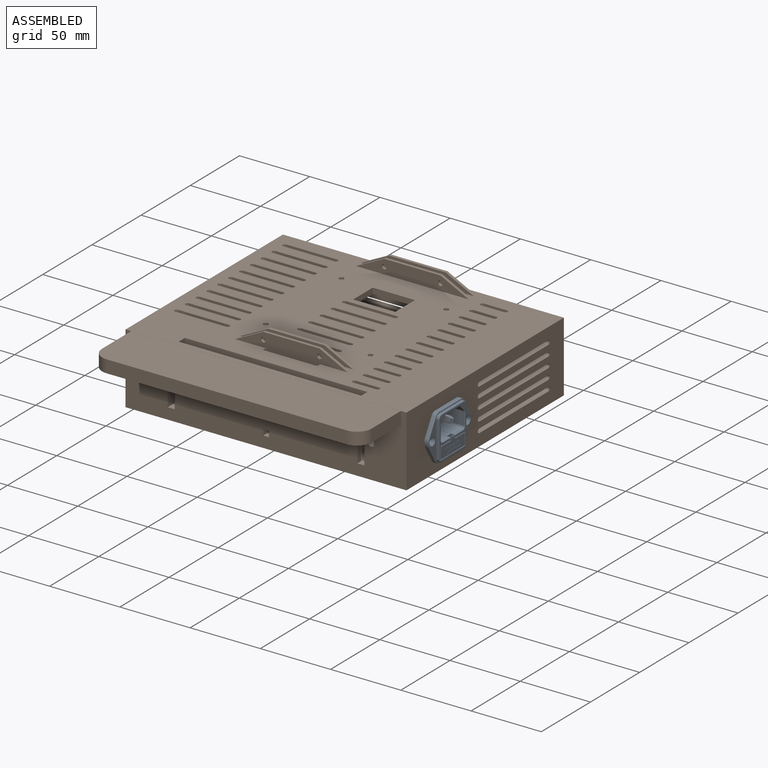
[diagram: assembled view]
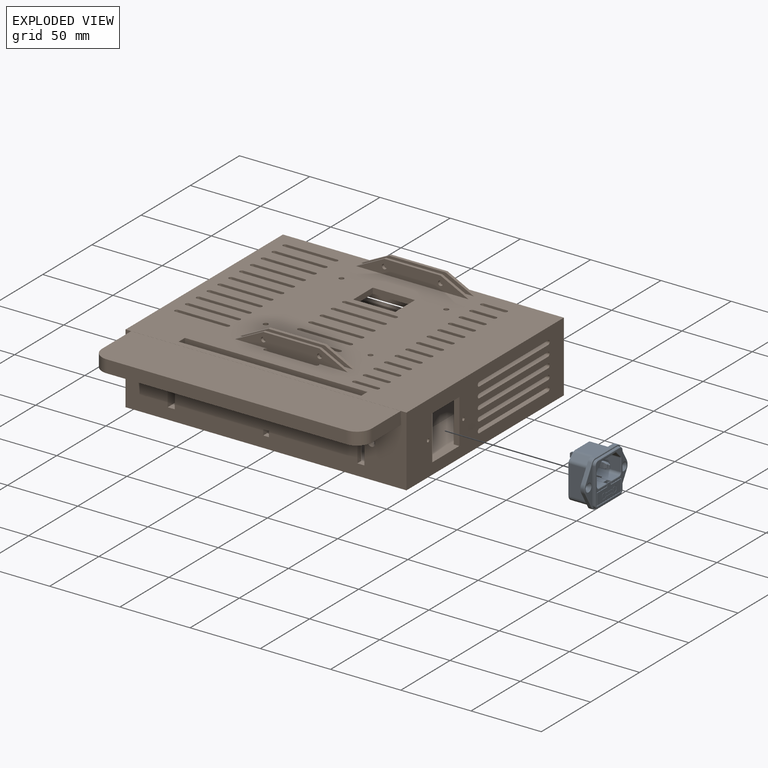
[diagram: exploded view]
GUIDED TOUR — FREECAD ASSEMBLY "BaseBox"

This assembly has 2 components, labeled P0..P1 below (a component is one placed body or linked part; the same part can appear more than once), held together by 0 modeled joints plus 1 derived contact edge. A joint is a constraint between two components; its type names the relative motion it leaves free:
  CONTACT — a derived adjacency edge — the two components touch in the source model (clearance under 2% of the assembly's diagonal); it is measured from the geometry, not a modeled constraint.
Axis/direction vectors are unit vectors and 'through' points are millimeter coordinates, both in the assembly's world frame.

MATES
  1. CONTACT "contact_0_1": P0 <-> P1, contact direction (-1.000, 0.000, 0.000) through (200.00, -58.18, 18.31) mm (derived from contact, not a modeled constraint)

ASSEMBLY ORDER
  1. P1 — the base component [order verified]
  2. P0 [order verified]
Order-tag legend:
  [order verified] — this step's position reverses a verified removal order: the component was checked to insert without passing through the ones already placed.

Of the 2 components, 1 carries a construction recipe — the FreeCAD feature program (sketches with constraints, then the solid features that consume them) that regenerates the part from scratch, quoted from this document or from the linked companion document it references; the rest are supplied as boundary geometry only. The tour below walks the components in assembly order: each is shown spotlighted twice — in the assembled view, then in the exploded view, where a leader line traces a displaced component back to its assembled socket (components that stay in place when exploded have no leader line; saturated green if recipe-attached, orange if geometry-only; every other component desaturated gray) — followed by its recipe or geometry summary and the mates that hold it.
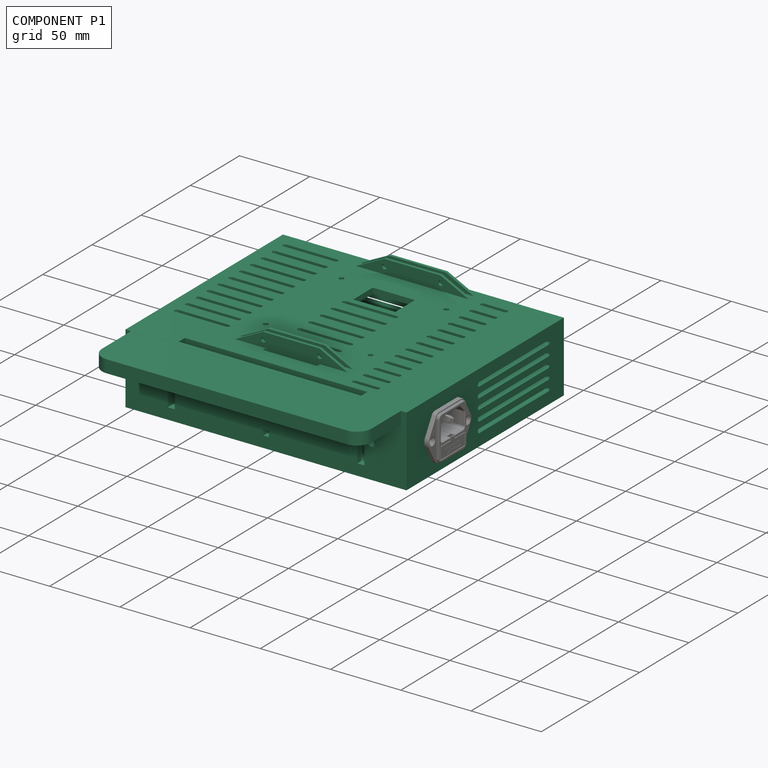
[diagram: component P1 — assembled]
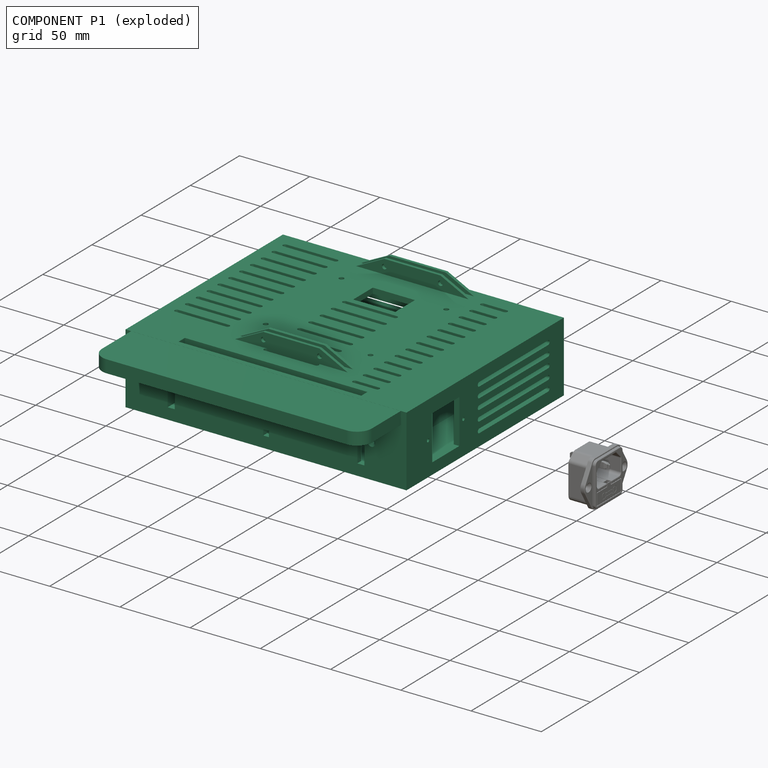
[diagram: component P1 — exploded]
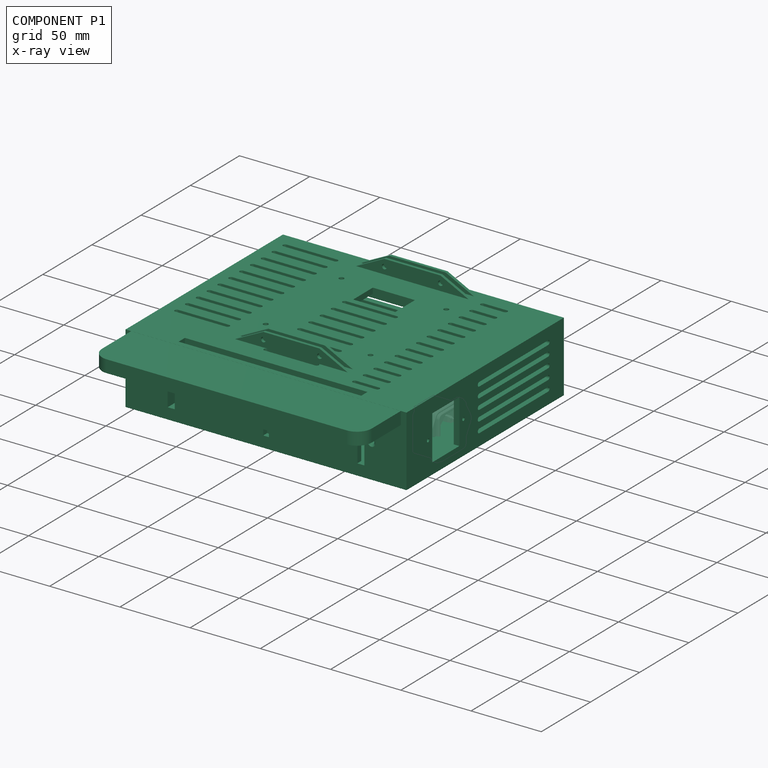
[diagram: component P1 — x-ray view]
COMPONENT P1 — recipe-attached ("BaseBox Part", modeled in this document).
Held by: resting contact with P0 (derived edge).
Construction recipe (the document's own serialized feature program — sketch geometry with constraints, then the solid features built on it; lengths are millimeters unless a unit is written):

FEATURE [Sketcher::SketchObject] Sketch  label="BaseBox Left Side Sketch"
  ArcFitTolerance = 1e-06
  AttachmentSupport = -> [YZ_Plane001]
  FullyConstrained = true
  MakeInternals = false
  MapMode = 5
  Placement = pos=(0,0,0) rot=(0.57735,0.57735,0.57735;2.0944rad)
  expr: Constraints[10] = <<Monitor Chassis Parameters>>.GSBasePowerBoxHeight - 2 * <<Monitor Chassis Parameters>>.GSBasePowerBoxSideThickness
  expr: Constraints[8] = <<Monitor Chassis Parameters>>.GSBasePowerBoxDepth - 2 * <<Monitor Chassis Parameters>>.GSBasePowerBoxSideThickness
  expr: Constraints[9] = 0.5 * (<<Monitor Chassis Parameters>>.GSBasePowerBoxDepth - 2 * <<Monitor Chassis Parameters>>.GSBasePowerBoxSideThickness)
  sketch-geometry (4):
    g0: LineSegment StartX=-76 StartY=42 StartZ=0 EndX=-76 EndY=0 EndZ=0
    g1: LineSegment StartX=-76 StartY=0 StartZ=0 EndX=76 EndY=0 EndZ=0
    g2: LineSegment StartX=76 StartY=0 StartZ=0 EndX=76 EndY=42 EndZ=0
    g3: LineSegment StartX=76 StartY=42 StartZ=0 EndX=-76 EndY=42 EndZ=0
  constraints (12):
    c: Coincident(g0,g1)
    c: Coincident(g1,g2)
    c: Coincident(g2,g3)
    c: Coincident(g3,g0)
    c: Vertical(g0)
    c: Vertical(g2)
    c: Horizontal(g1)
    c: Horizontal(g3)
    c: DistanceX(g0,g1) = 152
    c: DistanceX(g0,g-1) = 76
    c: DistanceY(g0,g0) = 42
    c: Horizontal(g-1,g0)
FEATURE [PartDesign::Pad] Pad  label="BaseBox Left Side Pad"
  Direction = (1,0,0)
  Length = 4
  Length2 = 10
  Placement = pos=(0,0,0) rot=(1,1,1;2.0944rad)
  Profile = -> Sketch
  ReferenceAxis = -> Sketch [N_Axis]
  Suppressed = false
  Type = 0
  expr: Length = <<Monitor Chassis Parameters>>.GSBasePowerBoxSideThickness
FEATURE [Sketcher::SketchObject] Sketch001  label="BaseBox Enclosure Sketch"
  ArcFitTolerance = 1e-06
  AttachmentSupport = -> [YZ_Plane001]
  FullyConstrained = true
  MakeInternals = false
  MapMode = 5
  Placement = pos=(0,0,0) rot=(0.57735,0.57735,0.57735;2.0944rad)
  expr: Constraints[16] = 0.5 * (<<Monitor Chassis Parameters>>.GSBasePowerBoxDepth - 2 * <<Monitor Chassis Parameters>>.GSBasePowerBoxSideThickness)
  expr: Constraints[17] = <<Monitor Chassis Parameters>>.GSBasePowerBoxDepth - 2 * <<Monitor Chassis Parameters>>.GSBasePowerBoxSideThickness
  expr: Constraints[18] = <<Monitor Chassis Parameters>>.GSBasePowerBoxHeight - 2 * <<Monitor Chassis Parameters>>.GSBasePowerBoxSideThickness
  expr: Constraints[19] = <<Monitor Chassis Parameters>>.GSBasePowerBoxSideThickness
  expr: Constraints[20] = <<Monitor Chassis Parameters>>.GSBasePowerBoxSideThickness
  expr: Constraints[21] = <<Monitor Chassis Parameters>>.GSBasePowerBoxSideThickness
  expr: Constraints[23] = <<Monitor Chassis Parameters>>.GSBasePowerBoxSideThickness
  sketch-geometry (8):
    g0: LineSegment StartX=-80 StartY=46 StartZ=0 EndX=-80 EndY=-4 EndZ=0
    g1: LineSegment StartX=-80 StartY=-4 StartZ=0 EndX=80 EndY=-4 EndZ=0
    g2: LineSegment StartX=80 StartY=-4 StartZ=0 EndX=80 EndY=46 EndZ=0
    g3: LineSegment StartX=80 StartY=46 StartZ=0 EndX=-80 EndY=46 EndZ=0
    g4: LineSegment StartX=-76 StartY=42 StartZ=0 EndX=-76 EndY=0 EndZ=0
    g5: LineSegment StartX=-76 StartY=0 StartZ=0 EndX=76 EndY=0 EndZ=0
    g6: LineSegment StartX=76 StartY=0 StartZ=0 EndX=76 EndY=42 EndZ=0
    g7: LineSegment StartX=76 StartY=42 StartZ=0 EndX=-76 EndY=42 EndZ=0
  constraints (24):
    c: Coincident(g0,g1)
    c: Coincident(g1,g2)
    c: Coincident(g2,g3)
    c: Coincident(g3,g0)
    c: Vertical(g0)
    c: Vertical(g2)
    c: Horizontal(g1)
    c: Horizontal(g3)
    c: Coincident(g4,g5)
    c: Coincident(g5,g6)
    c: Coincident(g6,g7)
    c: Coincident(g7,g4)
    c: Vertical(g4)
    c: Vertical(g6)
    c: Horizontal(g5)
    c: Horizontal(g7)
    c: DistanceX(g4,g-1) = 76
    c: DistanceX(g4,g5) = 152
    c: DistanceY(g4,g4) = 42
    c: DistanceX(g0,g4) = 4
    c: DistanceY(g4,g0) = 4
    c: DistanceX(g5,g1) = 4
    c: Horizontal(g4,g-1)
    c: DistanceY(g0,g4) = 4
FEATURE [PartDesign::Pad] Pad001  label="BaseBox Enclosure Pad"
  BaseFeature = -> Pad
  Direction = (1,0,0)
  Length = 180
  Length2 = 10
  Placement = pos=(0,0,0) rot=(1,1,1;2.0944rad)
  Profile = -> Sketch001
  ReferenceAxis = -> Sketch001 [N_Axis]
  Suppressed = false
  Type = 0
  expr: Length = <<Monitor Chassis Parameters>>.GSBasePowerBoxWidth
FEATURE [PartDesign::Plane] DatumPlane  label="BaseBox Side Datum Plane"
  AttachmentOffset = pos=(0,0,-80) rot=(0,0,1;0rad)
  AttachmentSupport = -> [XZ_Plane001]
  Length = 230.772
  MapMode = 5
  Placement = pos=(0,80,-1.78e-14) rot=(1,0,0;1.5708rad)
  ResizeMode = 0
  Width = 106.772
  expr: .AttachmentOffset.Base.z = -0.5 * <<Monitor Chassis Parameters>>.GSBasePowerBoxDepth
FEATURE [Sketcher::SketchObject] Sketch002  label="BaseBox Side Screw Holes Sketch"
  ArcFitTolerance = 1e-06
  AttachmentSupport = -> [DatumPlane]
  FullyConstrained = true
  MakeInternals = false
  MapMode = 5
  Placement = pos=(0,80,-1.78e-14) rot=(1,0,0;1.5708rad)
  expr: Constraints[0] = <<Monitor Chassis Parameters>>.GSBasePowerBoxSupplyMountingScrewSize
  expr: Constraints[1] = <<Monitor Chassis Parameters>>.GSBasePowerBoxSupplyMountingScrewSize
  expr: Constraints[2] = <<Monitor Chassis Parameters>>.GSBasePowerBoxSupplyMountingScrewSize
  expr: Constraints[4] = <<Monitor Chassis Parameters>>.GSBasePowerBoxSupplyMountingLeftScrewOffsetFromRight
  expr: Constraints[5] = <<Monitor Chassis Parameters>>.GSBasePowerBoxSupplyMountingScrewOffsetFromRight
  expr: Constraints[6] = <<Monitor Chassis Parameters>>.GSBasePowerBoxSupplyMountingRightScrewHeight1
  expr: Constraints[7] = <<Monitor Chassis Parameters>>.GSBasePowerBoxSupplyMountingRightScrewHeight2
  expr: Constraints[8] = <<Monitor Chassis Parameters>>.GSBasePowerBoxSupplyMountingLeftScrewHeight
  sketch-geometry (3):
    g0: Circle CenterX=141 CenterY=15 CenterZ=0 NormalX=0 NormalY=0 NormalZ=1 AngleXU=0 Radius=1.7
    g1: Circle CenterX=24 CenterY=24 CenterZ=0 NormalX=0 NormalY=0 NormalZ=1 AngleXU=0 Radius=1.7
    g2: Circle CenterX=24 CenterY=6 CenterZ=0 NormalX=0 NormalY=0 NormalZ=1 AngleXU=0 Radius=1.7
  constraints (9):
    c: Diameter(g0) = 3.4
    c: Diameter(g1) = 3.4
    c: Diameter(g2) = 3.4
    c: Vertical(g1,g2)
    c: DistanceX(g-1,g0) = 141
    c: DistanceX(g-1,g2) = 24
    c: DistanceY(g-1,g2) = 6
    c: DistanceY(g-1,g1) = 24
    c: DistanceY(g-1,g0) = 15
FEATURE [PartDesign::Hole] Hole  label="BaseBox Side Screw Holes"
  BaseFeature = -> Pad001
  CustomThreadClearance = 0
  Depth = 25
  DepthType = 0
  Diameter = 3.4
  DrillForDepth = false
  DrillPoint = 1
  DrillPointAngle = 118
  HoleCutCountersinkAngle = 90
  HoleCutCustomValues = false
  HoleCutDepth = 0
  HoleCutDiameter = 5.3
  HoleCutType = 2
  ModelThread = false
  Placement = pos=(0,0,0) rot=(1,1,1;2.0944rad)
  Profile = -> Sketch002
  Reversed = true
  Suppressed = false
  Tapered = false
  TaperedAngle = 90
  ThreadClass = 0
  ThreadDepth = 25
  ThreadDepthType = 0
  ThreadDirection = 0
  ThreadFit = 0
  ThreadSize = 0
  ThreadType = 0
  Threaded = false
  UseCustomThreadClearance = false
  expr: Diameter = <<Monitor Chassis Parameters>>.GSBasePowerBoxSupplyMountingScrewSize
  expr: HoleCutDiameter = <<Monitor Chassis Parameters>>.GSM3BoltCountersinkDiameter
FEATURE [PartDesign::Plane] DatumPlane001  label="BaseBox Bottom Datum Plane"
  AttachmentOffset = pos=(0,0,-4) rot=(0,0,1;0rad)
  AttachmentSupport = -> [XY_Plane001]
  Length = 241.222
  MapMode = 5
  Placement = pos=(0,0,-4) rot=(0,0,1;0rad)
  ResizeMode = 0
  Width = 196.222
  expr: .AttachmentOffset.Base.z = -<<Monitor Chassis Parameters>>.GSBasePowerBoxSideThickness
FEATURE [Sketcher::SketchObject] Sketch003  label="BaseBox Bottom Screw Holes Sketch"
  ArcFitTolerance = 1e-06
  AttachmentSupport = -> [DatumPlane001]
  FullyConstrained = true
  MakeInternals = false
  MapMode = 5
  Placement = pos=(0,0,-4) rot=(0,0,1;0rad)
  expr: Constraints[1] = <<Monitor Chassis Parameters>>.GSBasePowerBoxSupplyMountingScrewSize
  expr: Constraints[2] = <<Monitor Chassis Parameters>>.GSBasePowerBoxSupplyMountingScrewSize
  expr: Constraints[3] = <<Monitor Chassis Parameters>>.GSBasePowerBoxSupplyMountingBottomScrewsBackOffset
  expr: Constraints[4] = <<Monitor Chassis Parameters>>.GSBasePowerBoxSupplyMountingBottomScrewOffsetFromLeft1
  expr: Constraints[5] = <<Monitor Chassis Parameters>>.GSBasePowerBoxSupplyMountingBottomScrewOffsetFromLeft2
  sketch-geometry (2):
    g0: Circle CenterX=139 CenterY=44 CenterZ=0 NormalX=0 NormalY=0 NormalZ=1 AngleXU=0 Radius=1.7
    g1: Circle CenterX=61 CenterY=44 CenterZ=0 NormalX=0 NormalY=0 NormalZ=1 AngleXU=0 Radius=1.7
  constraints (6):
    c: Horizontal(g0,g1)
    c: Diameter(g0) = 3.4
    c: Diameter(g1) = 3.4
    c: DistanceY(g1) = 44
    c: DistanceX(g-1,g0) = 139
    c: DistanceX(g-1,g1) = 61
FEATURE [PartDesign::Hole] Hole001  label="BaseBox Bottom Screw Holes"
  BaseFeature = -> Hole
  CustomThreadClearance = 0
  Depth = 25
  DepthType = 0
  Diameter = 3.4
  DrillForDepth = false
  DrillPoint = 1
  DrillPointAngle = 118
  HoleCutCountersinkAngle = 90
  HoleCutCustomValues = false
  HoleCutDepth = 0
  HoleCutDiameter = 5.3
  HoleCutType = 2
  ModelThread = false
  Placement = pos=(0,0,0) rot=(1,1,1;2.0944rad)
  Profile = -> Sketch003
  Reversed = true
  Suppressed = false
  Tapered = false
  TaperedAngle = 90
  ThreadClass = 0
  ThreadDepth = 25
  ThreadDepthType = 0
  ThreadDirection = 0
  ThreadFit = 0
  ThreadSize = 0
  ThreadType = 0
  Threaded = false
  UseCustomThreadClearance = false
  expr: Diameter = <<Monitor Chassis Parameters>>.GSBasePowerBoxSupplyMountingScrewSize
  expr: HoleCutDiameter = <<Monitor Chassis Parameters>>.GSM3BoltCountersinkDiameter
FEATURE [Sketcher::SketchObject] Sketch005  label="BaseBox Left Side Slots Sketch"
  ArcFitTolerance = 1e-06
  AttachmentSupport = -> [YZ_Plane001]
  FullyConstrained = false
  MakeInternals = false
  MapMode = 5
  Placement = pos=(0,0,0) rot=(0.57735,0.57735,0.57735;2.0944rad)
  expr: Constraints[3] = <<Monitor Chassis Parameters>>.GSBasePowerBoxCoolingSlotWidth
  sketch-geometry (4):
    g0: LineSegment StartX=55 StartY=4.30289 StartZ=0 EndX=-55 EndY=4.30289 EndZ=0
    g1: LineSegment StartX=55 StartY=7.30289 StartZ=0 EndX=-55 EndY=7.30289 EndZ=0
    g2: ArcOfCircle CenterX=55 CenterY=5.80289 CenterZ=0 NormalX=0 NormalY=0 NormalZ=1 AngleXU=0 Radius=1.5 StartAngle=4.71239 EndAngle=7.85398
    g3: ArcOfCircle CenterX=-55 CenterY=5.80289 CenterZ=0 NormalX=0 NormalY=0 NormalZ=1 AngleXU=0 Radius=1.5 StartAngle=1.5708 EndAngle=4.71239
  constraints (13):
    c: Horizontal(g0)
    c: Horizontal(g1)
    c: Vertical(g0,g1)
    c: DistanceY(g0,g1) = 3
    c: DistanceX(g-1,g0) = 55
    c: DistanceX(g0,g-1) = 55
    c: Coincident(g2,g1)
    c: Coincident(g2,g0)
    c: Vertical(g2,g1)
    c: Vertical(g0,g1)
    c: Coincident(g3,g1)
    c: Coincident(g3,g0)
    c: Vertical(g0,g3)
FEATURE [PartDesign::Pocket] Pocket  label="BaseBox Left Side Slots Pocket"
  BaseFeature = -> Hole001
  Direction = (-1,0,0)
  Length = 0
  Length2 = 5
  Placement = pos=(0,0,0) rot=(1,1,1;2.0944rad)
  Profile = -> Sketch005
  ReferenceAxis = -> Sketch005 [N_Axis]
  Reversed = true
  Suppressed = false
  Type = 2
FEATURE [PartDesign::LinearPattern] LinearPattern
  BaseFeature = -> Pocket
  Direction = -> Z_Axis001
  Length = 30
  Mode = 1
  Occurrences = 4
  Offset = 10
  Originals = -> [Pocket]
  Placement = pos=(0,0,0) rot=(1,1,1;2.0944rad)
  Suppressed = false
  TransformMode = 0
FEATURE [PartDesign::Plane] DatumPlane002  label="BaseBox Top DatumPlane"
  AttachmentOffset = pos=(0,0,46) rot=(0,0,1;0rad)
  AttachmentSupport = -> [XY_Plane001]
  Length = 241.222
  MapMode = 5
  Placement = pos=(0,0,46) rot=(0,0,1;0rad)
  ResizeMode = 0
  Width = 196.222
  expr: .AttachmentOffset.Base.z = <<Monitor Chassis Parameters>>.GSBasePowerBoxHeight - <<Monitor Chassis Parameters>>.GSBasePowerBoxSideThickness
FEATURE [Sketcher::SketchObject] Sketch006  label="BaseBox Top Holes Sketch"
  ArcFitTolerance = 1e-06
  AttachmentSupport = -> [DatumPlane002]
  FullyConstrained = true
  MakeInternals = false
  MapMode = 5
  Placement = pos=(0,0,46) rot=(0,0,1;0rad)
  expr: Constraints[10] = 0.5 * (<<Monitor Chassis Parameters>>.GSBasePowerBoxWidth - <<Monitor Chassis Parameters>>.GSShankShieldWidth) + 0.5 * <<Monitor Chassis Parameters>>.GSBaseBoxCapOuterWidth
  expr: Constraints[11] = 0.5 * <<Monitor Chassis Parameters>>.GSBasePowerBoxDepth - <<Monitor Chassis Parameters>>.GSBasePowerBoxSideThickness
  expr: Constraints[8] = <<Monitor Chassis Parameters>>.GSShankShieldThickness
  expr: Constraints[9] = <<Monitor Chassis Parameters>>.GSShankShieldWidth
  sketch-geometry (4):
    g0: LineSegment StartX=35 StartY=-69.65 StartZ=0 EndX=35 EndY=-76 EndZ=0
    g1: LineSegment StartX=35 StartY=-76 StartZ=0 EndX=165 EndY=-76 EndZ=0
    g2: LineSegment StartX=165 StartY=-76 StartZ=0 EndX=165 EndY=-69.65 EndZ=0
    g3: LineSegment StartX=165 StartY=-69.65 StartZ=0 EndX=35 EndY=-69.65 EndZ=0
  constraints (12):
    c: Coincident(g0,g1)
    c: Coincident(g1,g2)
    c: Coincident(g2,g3)
    c: Coincident(g3,g0)
    c: Vertical(g0)
    c: Vertical(g2)
    c: Horizontal(g1)
    c: Horizontal(g3)
    c: DistanceY(g0,g0) = 6.35
    c: DistanceX(g0,g2) = 130
    c: DistanceX(g-1,g0) = 35
    c: DistanceY(g0,g-1) = 76
FEATURE [PartDesign::Pocket] Pocket001  label="Shank Shield Pocket"
  BaseFeature = -> LinearPattern
  Direction = (0,0,-1)
  Length = 5
  Length2 = 5
  Placement = pos=(0,0,0) rot=(1,1,1;2.0944rad)
  Profile = -> Sketch006
  ReferenceAxis = -> Sketch006 [N_Axis]
  Suppressed = false
  Type = 2
FEATURE [Sketcher::SketchObject] Sketch007  label="Shank Shield Position Ribs Sketch"
  ArcFitTolerance = 1e-06
  AttachmentSupport = -> [XY_Plane001]
  FullyConstrained = true
  MakeInternals = false
  MapMode = 5
  expr: Constraints[12] = <<Monitor Chassis Parameters>>.GSBasePowerBoxSideThickness
  expr: Constraints[13] = <<Monitor Chassis Parameters>>.GSBasePowerBoxSideThickness
  expr: Constraints[14] = <<Monitor Chassis Parameters>>.GSShankShieldThickness
  expr: Constraints[15] = 0.5 * <<Monitor Chassis Parameters>>.GSBasePowerBoxDepth - <<Monitor Chassis Parameters>>.GSBasePowerBoxSideThickness
  expr: Constraints[17] = 0.5 * (<<Monitor Chassis Parameters>>.GSBasePowerBoxWidth - <<Monitor Chassis Parameters>>.GSShankShieldWidth) + 0.5 * <<Monitor Chassis Parameters>>.GSBaseBoxCapOuterWidth - <<Monitor Chassis Parameters>>.GSBasePowerBoxSideThickness
  sketch-geometry (6):
    g0: LineSegment StartX=4 StartY=-76 StartZ=0 EndX=35 EndY=-76 EndZ=0
    g1: LineSegment StartX=35 StartY=-76 StartZ=0 EndX=35 EndY=-69.65 EndZ=0
    g2: LineSegment StartX=35 StartY=-69.65 StartZ=0 EndX=144 EndY=-69.65 EndZ=0
    g3: LineSegment StartX=144 StartY=-69.65 StartZ=0 EndX=144 EndY=-65.65 EndZ=0
    g4: LineSegment StartX=144 StartY=-65.65 StartZ=0 EndX=4 EndY=-65.65 EndZ=0
    g5: LineSegment StartX=4 StartY=-65.65 StartZ=0 EndX=4 EndY=-76 EndZ=0
  constraints (18):
    c: Horizontal(g0)
    c: Coincident(g1,g0)
    c: Vertical(g1)
    c: Coincident(g2,g1)
    c: Horizontal(g2)
    c: Coincident(g3,g2)
    c: Vertical(g3)
    c: Coincident(g4,g3)
    c: Horizontal(g4)
    c: Coincident(g5,g4)
    c: Coincident(g5,g0)
    c: Vertical(g5)
    c: DistanceX(g-1,g4) = 4
    c: DistanceY(g2,g3) = 4
    c: DistanceY(g0,g1) = 6.35
    c: DistanceY(g0,g-1) = 76
    c: DistanceX(g4,g3) = 140
    c: DistanceX(g0,g0) = 31
FEATURE [PartDesign::Pad] Pad002  label="Shank Shield Position Ribs Pad"
  BaseFeature = -> Pocket001
  Direction = (0,0,1)
  Length = 42
  Length2 = 10
  Placement = pos=(0,0,0) rot=(1,1,1;2.0944rad)
  Profile = -> Sketch007
  ReferenceAxis = -> Sketch007 [N_Axis]
  Suppressed = false
  Type = 0
  expr: Length = <<Monitor Chassis Parameters>>.GSBasePowerBoxHeight - 2 * <<Monitor Chassis Parameters>>.GSBasePowerBoxSideThickness
FEATURE [Sketcher::SketchObject] Sketch008  label="Light Shield Sketch"
  ArcFitTolerance = 1e-06
  AttachmentSupport = -> [XY_Plane002]
  FullyConstrained = false
  MakeInternals = false
  MapMode = 5
  expr: Constraints[18] = <<Monitor Chassis Parameters>>.GSLightShieldTabWidth
  expr: Constraints[19] = <<Monitor Chassis Parameters>>.GSLightShieldTabWidth
  expr: Constraints[20] = <<Monitor Chassis Parameters>>.GSLightShieldTabDepth
  expr: Constraints[22] = <<Monitor Chassis Parameters>>.GSLightShieldDepth
  expr: Constraints[28] = <<Monitor Chassis Parameters>>.GSBasePowerBoxWidth + <<Monitor Chassis Parameters>>.GSBaseBoxCapOuterWidth - <<Monitor Chassis Parameters>>.GSBasePowerBoxSideThickness
  expr: Constraints[29] = <<Monitor Chassis Parameters>>.GSBasePowerBoxSideThickness
  sketch-geometry (10):
    g0: LineSegment StartX=4 StartY=-112.141 StartZ=0 EndX=4 EndY=-57.7713 EndZ=0
    g1: LineSegment StartX=4 StartY=-57.7713 StartZ=0 EndX=24 EndY=-57.7713 EndZ=0
    g2: LineSegment StartX=24 StartY=-57.7713 StartZ=0 EndX=24 EndY=-82.7713 EndZ=0
    g3: LineSegment StartX=24 StartY=-82.7713 StartZ=0 EndX=176 EndY=-82.7713 EndZ=0
    g4: LineSegment StartX=176 StartY=-82.7713 StartZ=0 EndX=176 EndY=-57.7713 EndZ=0
    g5: LineSegment StartX=176 StartY=-57.7713 StartZ=0 EndX=196 EndY=-57.7713 EndZ=0
    g6: LineSegment StartX=196 StartY=-57.7713 StartZ=0 EndX=196 EndY=-112.141 EndZ=0
    g7: LineSegment StartX=14.6305 StartY=-122.771 StartZ=0 EndX=185.37 EndY=-122.771 EndZ=0
    g8: ArcOfCircle CenterX=14.6305 CenterY=-112.141 CenterZ=0 NormalX=0 NormalY=0 NormalZ=1 AngleXU=0 Radius=10.6305 StartAngle=3.14159 EndAngle=4.71239
    g9: ArcOfCircle CenterX=185.37 CenterY=-112.141 CenterZ=0 NormalX=0 NormalY=0 NormalZ=1 AngleXU=0 Radius=10.6305 StartAngle=4.71239 EndAngle=6.28319
  constraints (30):
    c: Vertical(g0)
    c: Coincident(g1,g0)
    c: Horizontal(g1)
    c: Coincident(g2,g1)
    c: Vertical(g2)
    c: Coincident(g3,g2)
    c: Horizontal(g3)
    c: Coincident(g4,g3)
    c: Vertical(g4)
    c: Coincident(g5,g4)
    c: Horizontal(g5)
    c: Coincident(g6,g5)
    c: Vertical(g6)
    c: Horizontal(g7)
    c: Coincident(g8,g0)
    c: Coincident(g8,g7)
    c: Coincident(g9,g7)
    c: Coincident(g9,g6)
    c: DistanceX(g0,g1) = 20
    c: DistanceX(g4,g5) = 20
    c: DistanceY(g2,g1) = 25
    c: Horizontal(g1,g4)
    c: DistanceY(g7,g2) = 40
    c: Horizontal(g8,g0)
    c: Horizontal(g9,g6)
    c: Vertical(g8,g7)
    c: Vertical(g9,g7)
    c: Horizontal(g0,g6)
    c: DistanceX(g-1,g5) = 196
    c: DistanceX(g-1,g0) = 4
FEATURE [PartDesign::Pad] Pad003  label="Light Shield Pad"
  Direction = (0,0,1)
  Length = 9
  Length2 = 10
  Profile = -> Sketch008
  ReferenceAxis = -> Sketch008 [N_Axis]
  Suppressed = false
  Type = 0
  expr: Length = <<Monitor Chassis Parameters>>.GSLightShieldThickness + <<Monitor Chassis Parameters>>.GSBasePowerBoxSideThickness
FEATURE [PartDesign::Plane] DatumPlane003  label="BaseBox Front DatumPlane"
  AttachmentOffset = pos=(0,0,80) rot=(0,0,1;0rad)
  AttachmentSupport = -> [XZ_Plane001]
  Length = 230.772
  MapMode = 5
  Placement = pos=(0,-80,1.78e-14) rot=(1,0,0;1.5708rad)
  ResizeMode = 0
  Width = 106.772
  expr: .AttachmentOffset.Base.z = 0.5 * <<Monitor Chassis Parameters>>.GSBasePowerBoxDepth
FEATURE [Sketcher::SketchObject] Sketch009  label="Light Shield Tabs Sketch"
  ArcFitTolerance = 1e-06
  AttachmentSupport = -> [DatumPlane003]
  FullyConstrained = true
  MakeInternals = false
  MapMode = 5
  Placement = pos=(0,-80,1.78e-14) rot=(1,0,0;1.5708rad)
  expr: Constraints[10] = <<Monitor Chassis Parameters>>.GSBasePowerBoxSideThickness
  expr: Constraints[11] = <<Monitor Chassis Parameters>>.GSLightShieldHeight
  expr: Constraints[21] = <<Monitor Chassis Parameters>>.GSLightShieldTabThickness
  expr: Constraints[22] = <<Monitor Chassis Parameters>>.GSLightShieldTabWidth + <<Monitor Chassis Parameters>>.GSPartFitExtraToleranceDistance
  expr: Constraints[23] = <<Monitor Chassis Parameters>>.GSBasePowerBoxWidth + <<Monitor Chassis Parameters>>.GSBaseBoxCapOuterWidth - <<Monitor Chassis Parameters>>.GSBasePowerBoxSideThickness
  expr: Constraints[8] = <<Monitor Chassis Parameters>>.GSLightShieldTabWidth + 6 + <<Monitor Chassis Parameters>>.GSPartFitExtraToleranceDistance
  expr: Constraints[9] = <<Monitor Chassis Parameters>>.GSLightShieldTabThickness + 0.5 * <<Monitor Chassis Parameters>>.GSPartFitExtraToleranceDistance
  sketch-geometry (8):
    g0: LineSegment StartX=4 StartY=36.9 StartZ=0 EndX=30.2 EndY=36.9 EndZ=0
    g1: LineSegment StartX=30.2 StartY=36.9 StartZ=0 EndX=30.2 EndY=42 EndZ=0
    g2: LineSegment StartX=30.2 StartY=42 StartZ=0 EndX=4 EndY=42 EndZ=0
    g3: LineSegment StartX=4 StartY=42 StartZ=0 EndX=4 EndY=36.9 EndZ=0
    g4: LineSegment StartX=175.8 StartY=37 StartZ=0 EndX=196 EndY=37 EndZ=0
    g5: LineSegment StartX=196 StartY=37 StartZ=0 EndX=196 EndY=42 EndZ=0
    g6: LineSegment StartX=196 StartY=42 StartZ=0 EndX=175.8 EndY=42 EndZ=0
    g7: LineSegment StartX=175.8 StartY=42 StartZ=0 EndX=175.8 EndY=37 EndZ=0
  constraints (24):
    c: Coincident(g0,g1)
    c: Coincident(g1,g2)
    c: Coincident(g2,g3)
    c: Coincident(g3,g0)
    c: Horizontal(g0)
    c: Horizontal(g2)
    c: Vertical(g1)
    c: Vertical(g3)
    c: DistanceX(g2,g1) = 26.2
    c: DistanceY(g0,g2) = 5.1
    c: DistanceX(g-1,g0) = 4
    c: DistanceY(g-1,g2) = 42
    c: Coincident(g4,g5)
    c: Coincident(g5,g6)
    c: Coincident(g6,g7)
    c: Coincident(g7,g4)
    c: Horizontal(g4)
    c: Horizontal(g6)
    c: Vertical(g5)
    c: Vertical(g7)
    c: Horizontal(g6,g1)
    c: DistanceY(g4,g5) = 5
    c: DistanceX(g6,g5) = 20.2
    c: DistanceX(g-1,g5) = 196
FEATURE [PartDesign::Pocket] Pocket002  label="Light Shield Tabs Pocket"
  BaseFeature = -> Pad002
  Direction = (0,1,-2e-16)
  Length = 25
  Length2 = 5
  Placement = pos=(0,0,0) rot=(1,1,1;2.0944rad)
  Profile = -> Sketch009
  ReferenceAxis = -> Sketch009 [N_Axis]
  Suppressed = false
  Type = 0
  expr: Length = <<Monitor Chassis Parameters>>.GSLightShieldTabDepth
FEATURE [Sketcher::SketchObject] Sketch010  label="Overhang Fix Sketch 1"
  ArcFitTolerance = 1e-06
  AttachmentSupport = -> [Pad002]
  FullyConstrained = false
  MakeInternals = false
  MapMode = 5
  Placement = pos=(-1.46e-14,-65.65,7.3e-15) rot=(0.57735,0.57735,0.57735;4.18879rad)
  sketch-geometry (3):
    g0: LineSegment StartX=37.519 StartY=29.984 StartZ=0 EndX=41.9817 EndY=36.9429 EndZ=0
    g1: LineSegment StartX=41.9817 StartY=36.9429 StartZ=0 EndX=41.9817 EndY=29.984 EndZ=0
    g2: LineSegment StartX=41.9817 StartY=29.984 StartZ=0 EndX=37.519 EndY=29.984 EndZ=0
  constraints (5):
    c: Coincident(g1,g0)
    c: Vertical(g1)
    c: Coincident(g2,g1)
    c: Coincident(g2,g0)
    c: Horizontal(g2)
FEATURE [PartDesign::Pocket] Pocket003  label="Overhang Fix Pocket 1"
  BaseFeature = -> Pocket002
  Direction = (0,-1,0)
  Length = 5
  Length2 = 5
  Placement = pos=(0,0,0) rot=(1,1,1;2.0944rad)
  Profile = -> Sketch010
  ReferenceAxis = -> Sketch010 [N_Axis]
  Suppressed = false
  Type = 0
FEATURE [Sketcher::SketchObject] Sketch011  label="BaseBox Cap Side Sketch"
  ArcFitTolerance = 1e-06
  AttachmentSupport = -> [YZ_Plane003]
  FullyConstrained = true
  MakeInternals = false
  MapMode = 5
  Placement = pos=(0,0,0) rot=(0.57735,0.57735,0.57735;2.0944rad)
  expr: Constraints[10] = <<Monitor Chassis Parameters>>.GSBasePowerBoxHeight
  expr: Constraints[12] = <<Monitor Chassis Parameters>>.GSM3TappingScrewHoleDiameter
  expr: Constraints[23] = <<Monitor Chassis Parameters>>.GSPowerPlugCutoutWidth
  expr: Constraints[24] = <<Monitor Chassis Parameters>>.GSPowerPlugCutoutHeight
  expr: Constraints[25] = <<Monitor Chassis Parameters>>.GSPowerPlugScrewHoleOffset
  expr: Constraints[26] = <<Monitor Chassis Parameters>>.GSPowerPlugScrewHoleOffset
  expr: Constraints[29] = 0.5 * <<Monitor Chassis Parameters>>.GSPowerPlugCutoutHeight
  expr: Constraints[8] = <<Monitor Chassis Parameters>>.GSBasePowerBoxDepth
  expr: Constraints[9] = 0.5 * <<Monitor Chassis Parameters>>.GSBasePowerBoxDepth
  sketch-geometry (10):
    g0: LineSegment StartX=-80 StartY=50 StartZ=0 EndX=-80 EndY=0 EndZ=0
    g1: LineSegment StartX=-80 StartY=0 StartZ=0 EndX=80 EndY=0 EndZ=0
    g2: LineSegment StartX=80 StartY=0 StartZ=0 EndX=80 EndY=50 EndZ=0
    g3: LineSegment StartX=80 StartY=50 StartZ=0 EndX=-80 EndY=50 EndZ=0
    g4: Circle CenterX=22 CenterY=23.75 CenterZ=0 NormalX=0 NormalY=0 NormalZ=1 AngleXU=0 Radius=1.2
    g5: Circle CenterX=58 CenterY=23.75 CenterZ=0 NormalX=0 NormalY=0 NormalZ=1 AngleXU=0 Radius=1.2
    g6: LineSegment StartX=53.75 StartY=8 StartZ=0 EndX=53.75 EndY=39.5 EndZ=0
    g7: LineSegment StartX=53.75 StartY=39.5 StartZ=0 EndX=26.25 EndY=39.5 EndZ=0
    g8: LineSegment StartX=26.25 StartY=39.5 StartZ=0 EndX=26.25 EndY=8 EndZ=0
    g9: LineSegment StartX=26.25 StartY=8 StartZ=0 EndX=53.75 EndY=8 EndZ=0
  constraints (30):
    c: Coincident(g0,g1)
    c: Coincident(g1,g2)
    c: Coincident(g2,g3)
    c: Coincident(g3,g0)
    c: Vertical(g0)
    c: Vertical(g2)
    c: Horizontal(g1)
    c: Horizontal(g3)
    c: DistanceX(g0,g1) = 160
    c: DistanceX(g0,g-1) = 80
    c: DistanceY(g0,g0) = 50
    c: Horizontal(g0,g-1)
    c: Diameter(g4) = 2.4
    c: Diameter(g5) = 2.4
    c: Horizontal(g4,g5)
    c: Coincident(g6,g7)
    c: Coincident(g7,g8)
    c: Coincident(g8,g9)
    c: Coincident(g9,g6)
    c: Vertical(g6)
    c: Vertical(g8)
    c: Horizontal(g7)
    c: Horizontal(g9)
    c: DistanceX(g7,g6) = 27.5
    c: DistanceY(g6,g6) = 31.5
    c: DistanceX(g4,g7) = 4.25
    c: DistanceX(g6,g5) = 4.25
    c: DistanceY(g-1,g8) = 8
    c: DistanceX(g5,g1) = 22
    c: DistanceY(g8,g4) = 15.75
FEATURE [PartDesign::Pad] Pad004  label="BaseBox Cap Side Pad"
  Direction = (1,0,0)
  Length = 4
  Length2 = 10
  Placement = pos=(0,0,0) rot=(1,1,1;2.0944rad)
  Profile = -> Sketch011
  ReferenceAxis = -> Sketch011 [N_Axis]
  Suppressed = false
  Type = 0
  expr: Length = <<Monitor Chassis Parameters>>.GSBasePowerBoxSideThickness
FEATURE [Sketcher::SketchObject] Sketch012  label="BaseBox Cap Inner Sketch"
  ArcFitTolerance = 1e-06
  AttachmentSupport = -> [YZ_Plane003]
  FullyConstrained = true
  MakeInternals = false
  MapMode = 5
  Placement = pos=(0,0,0) rot=(0.57735,0.57735,0.57735;2.0944rad)
  expr: Constraints[14] = <<Monitor Chassis Parameters>>.GSBasePowerBoxCapSideThickness
  expr: Constraints[15] = <<Monitor Chassis Parameters>>.GSBasePowerBoxCapSideThickness
  expr: Constraints[16] = <<Monitor Chassis Parameters>>.GSBasePowerBoxCapSideThickness
  expr: Constraints[17] = <<Monitor Chassis Parameters>>.GSBasePowerBoxCapSideThickness
  expr: Constraints[19] = 2 * <<Monitor Chassis Parameters>>.GSBasePowerBoxCapSideThickness + 0.5 * <<Monitor Chassis Parameters>>.GSPartFitExtraToleranceDistance
  expr: Constraints[21] = <<Monitor Chassis Parameters>>.GSBasePowerBoxDepth - 2 * <<Monitor Chassis Parameters>>.GSBasePowerBoxSideThickness - <<Monitor Chassis Parameters>>.GSPartFitExtraToleranceDistance
  expr: Constraints[22] = 0.5 * (<<Monitor Chassis Parameters>>.GSBasePowerBoxDepth - 2 * <<Monitor Chassis Parameters>>.GSBasePowerBoxSideThickness - <<Monitor Chassis Parameters>>.GSPartFitExtraToleranceDistance)
  expr: Constraints[23] = <<Monitor Chassis Parameters>>.GSBasePowerBoxHeight - 2 * <<Monitor Chassis Parameters>>.GSBasePowerBoxSideThickness - <<Monitor Chassis Parameters>>.GSPartFitExtraToleranceDistance
  sketch-geometry (8):
    g0: LineSegment StartX=-73.9 StartY=43.9 StartZ=0 EndX=-73.9 EndY=6.1 EndZ=0
    g1: LineSegment StartX=-73.9 StartY=6.1 StartZ=0 EndX=73.9 EndY=6.1 EndZ=0
    g2: LineSegment StartX=73.9 StartY=6.1 StartZ=0 EndX=73.9 EndY=43.9 EndZ=0
    g3: LineSegment StartX=73.9 StartY=43.9 StartZ=0 EndX=-73.9 EndY=43.9 EndZ=0
    g4: LineSegment StartX=-75.9 StartY=45.9 StartZ=0 EndX=-75.9 EndY=4.1 EndZ=0
    g5: LineSegment StartX=-75.9 StartY=4.1 StartZ=0 EndX=75.9 EndY=4.1 EndZ=0
    g6: LineSegment StartX=75.9 StartY=4.1 StartZ=0 EndX=75.9 EndY=45.9 EndZ=0
    g7: LineSegment StartX=75.9 StartY=45.9 StartZ=0 EndX=-75.9 EndY=45.9 EndZ=0
  constraints (24):
    c: Coincident(g0,g1)
    c: Coincident(g1,g2)
    c: Coincident(g2,g3)
    c: Coincident(g3,g0)
    c: Vertical(g0)
    c: Vertical(g2)
    c: Horizontal(g3)
    c: Coincident(g4,g5)
    c: Coincident(g5,g6)
    c: Coincident(g6,g7)
    c: Coincident(g7,g4)
    c: Vertical(g4)
    c: Vertical(g6)
    c: Horizontal(g7)
    c: DistanceX(g4,g0) = 2
    c: DistanceY(g0,g4) = 2
    c: DistanceY(g4,g0) = 2
    c: DistanceX(g1,g5) = 2
    c: Horizontal(g5)
    c: DistanceY(g-1,g4) = 4.1
    c: Horizontal(g1)
    c: DistanceX(g4,g5) = 151.8
    c: DistanceX(g4,g-1) = 75.9
    c: DistanceY(g4,g4) = 41.8
FEATURE [PartDesign::Pad] Pad005  label="BaseBox Cap Inner Pad"
  BaseFeature = -> Pad004
  Direction = (1,0,0)
  Length = 30
  Length2 = 10
  Placement = pos=(0,0,0) rot=(1,1,1;2.0944rad)
  Profile = -> Sketch012
  ReferenceAxis = -> Sketch012 [N_Axis]
  Suppressed = false
  Type = 0
  expr: Length = <<Monitor Chassis Parameters>>.GSBasePowerBoxCapInnerDepth
FEATURE [Sketcher::SketchObject] Sketch013  label="BackBox Cap Outer Sketch"
  ArcFitTolerance = 1e-06
  AttachmentSupport = -> [YZ_Plane003]
  FullyConstrained = true
  MakeInternals = false
  MapMode = 5
  Placement = pos=(0,0,0) rot=(0.57735,0.57735,0.57735;2.0944rad)
  expr: Constraints[16] = 2 * <<Monitor Chassis Parameters>>.GSBasePowerBoxCapSideThickness + 0.5 * <<Monitor Chassis Parameters>>.GSPartFitExtraToleranceDistance
  expr: Constraints[17] = 2 * <<Monitor Chassis Parameters>>.GSBasePowerBoxCapSideThickness + 0.5 * <<Monitor Chassis Parameters>>.GSPartFitExtraToleranceDistance
  expr: Constraints[18] = 2 * <<Monitor Chassis Parameters>>.GSBasePowerBoxCapSideThickness + 0.5 * <<Monitor Chassis Parameters>>.GSPartFitExtraToleranceDistance
  expr: Constraints[19] = 2 * <<Monitor Chassis Parameters>>.GSBasePowerBoxCapSideThickness + 0.5 * <<Monitor Chassis Parameters>>.GSPartFitExtraToleranceDistance
  expr: Constraints[20] = <<Monitor Chassis Parameters>>.GSBasePowerBoxHeight
  expr: Constraints[21] = 0.5 * <<Monitor Chassis Parameters>>.GSBasePowerBoxDepth
  expr: Constraints[22] = <<Monitor Chassis Parameters>>.GSBasePowerBoxDepth
  sketch-geometry (8):
    g0: LineSegment StartX=-75.9 StartY=45.9 StartZ=0 EndX=-75.9 EndY=4.1 EndZ=0
    g1: LineSegment StartX=-75.9 StartY=4.1 StartZ=0 EndX=75.9 EndY=4.1 EndZ=0
    g2: LineSegment StartX=75.9 StartY=4.1 StartZ=0 EndX=75.9 EndY=45.9 EndZ=0
    g3: LineSegment StartX=75.9 StartY=45.9 StartZ=0 EndX=-75.9 EndY=45.9 EndZ=0
    g4: LineSegment StartX=-80 StartY=50 StartZ=0 EndX=-80 EndY=0 EndZ=0
    g5: LineSegment StartX=-80 StartY=0 StartZ=0 EndX=80 EndY=0 EndZ=0
    g6: LineSegment StartX=80 StartY=0 StartZ=0 EndX=80 EndY=50 EndZ=0
    g7: LineSegment StartX=80 StartY=50 StartZ=0 EndX=-80 EndY=50 EndZ=0
  constraints (24):
    c: Coincident(g0,g1)
    c: Coincident(g1,g2)
    c: Coincident(g2,g3)
    c: Coincident(g3,g0)
    c: Vertical(g0)
    c: Vertical(g2)
    c: Horizontal(g1)
    c: Horizontal(g3)
    c: Coincident(g4,g5)
    c: Coincident(g5,g6)
    c: Coincident(g6,g7)
    c: Coincident(g7,g4)
    c: Vertical(g4)
    c: Vertical(g6)
    c: Horizontal(g5)
    c: Horizontal(g7)
    c: DistanceX(g4,g0) = 4.1
    c: DistanceY(g0,g4) = 4.1
    c: DistanceY(g4,g0) = 4.1
    c: DistanceX(g1,g5) = 4.1
    c: DistanceY(g4,g4) = 50
    c: DistanceX(g4,g-1) = 80
    c: DistanceX(g4,g5) = 160
    c: Horizontal(g4,g-1)
FEATURE [PartDesign::Pad] Pad006  label="BackBox Cap Outer Pad"
  BaseFeature = -> Pad005
  Direction = (1,0,0)
  Length = 20
  Length2 = 10
  Placement = pos=(0,0,0) rot=(1,1,1;2.0944rad)
  Profile = -> Sketch013
  ReferenceAxis = -> Sketch013 [N_Axis]
  Suppressed = false
  Type = 0
  expr: Length = <<Monitor Chassis Parameters>>.GSBaseBoxCapOuterWidth
FEATURE [PartDesign::Point] DatumPoint
  AttacherType = Attacher::AttachEnginePoint
  AttachmentOffset = pos=(0,0,100) rot=(0,0,1;0rad)
  AttachmentSupport = -> [YZ_Plane001]
  MapMode = 32
  Placement = pos=(100,0,0) rot=(0.57735,0.57735,0.57735;2.0944rad)
  expr: .AttachmentOffset.Base.z = 0.5 * (<<Monitor Chassis Parameters>>.GSBasePowerBoxWidth + <<Monitor Chassis Parameters>>.GSBaseBoxCapOuterWidth)
FEATURE [PartDesign::Plane] DatumPlane004  label="BaseBox Cap Front DatumPlane"
  AttachmentOffset = pos=(0,0,-80) rot=(0,0,1;0rad)
  AttachmentSupport = -> [XZ_Plane003]
  Length = 67.8452
  MapMode = 5
  Placement = pos=(0,80,-1.78e-14) rot=(1,0,0;1.5708rad)
  ResizeMode = 0
  Width = 87.8452
  expr: .AttachmentOffset.Base.z = -0.5 * <<Monitor Chassis Parameters>>.GSBasePowerBoxDepth
FEATURE [Sketcher::SketchObject] Sketch014  label="BaseBox Cap Light Shield Cutout Sketch"
  ArcFitTolerance = 1e-06
  AttachmentSupport = -> [DatumPlane004]
  FullyConstrained = true
  MakeInternals = false
  MapMode = 5
  Placement = pos=(0,80,-1.78e-14) rot=(1,0,0;1.5708rad)
  expr: Constraints[10] = <<Monitor Chassis Parameters>>.GSBasePowerBoxSideThickness
  expr: Constraints[11] = <<Monitor Chassis Parameters>>.GSLightShieldHeight + <<Monitor Chassis Parameters>>.GSBasePowerBoxSideThickness
  expr: Constraints[8] = <<Monitor Chassis Parameters>>.GSLightShieldTabThickness
  expr: Constraints[9] = <<Monitor Chassis Parameters>>.GSLightShieldTabWidth + <<Monitor Chassis Parameters>>.GSPartFitExtraToleranceDistance
  sketch-geometry (4):
    g0: LineSegment StartX=4 StartY=41 StartZ=0 EndX=24.2 EndY=41 EndZ=0
    g1: LineSegment StartX=24.2 StartY=41 StartZ=0 EndX=24.2 EndY=46 EndZ=0
    g2: LineSegment StartX=24.2 StartY=46 StartZ=0 EndX=4 EndY=46 EndZ=0
    g3: LineSegment StartX=4 StartY=46 StartZ=0 EndX=4 EndY=41 EndZ=0
  constraints (12):
    c: Coincident(g0,g1)
    c: Coincident(g1,g2)
    c: Coincident(g2,g3)
    c: Coincident(g3,g0)
    c: Horizontal(g0)
    c: Horizontal(g2)
    c: Vertical(g1)
    c: Vertical(g3)
    c: DistanceY(g0,g1) = 5
    c: DistanceX(g2,g1) = 20.2
    c: DistanceX(g-1,g2) = 4
    c: DistanceY(g-1,g2) = 46
FEATURE [PartDesign::Pocket] Pocket004  label="BaseBox Cap LIght Shield Cutout Pocket"
  BaseFeature = -> Pad006
  Direction = (0,1,-2e-16)
  Length = 27
  Length2 = 5
  Placement = pos=(0,0,0) rot=(1,1,1;2.0944rad)
  Profile = -> Sketch014
  ReferenceAxis = -> Sketch014 [N_Axis]
  Reversed = true
  Suppressed = false
  Type = 0
  expr: Length = <<Monitor Chassis Parameters>>.GSLightShieldTabDepth + 2
FEATURE [Sketcher::SketchObject] Sketch015  label="BaseBox Top Port Sketch"
  ArcFitTolerance = 1e-06
  AttachmentSupport = -> [DatumPlane002]
  FullyConstrained = true
  MakeInternals = false
  MapMode = 5
  Placement = pos=(0,0,46) rot=(0,0,1;0rad)
  expr: Constraints[10] = 0.5 * <<Monitor Chassis Parameters>>.GSBasePowerBoxTotalWidth - 0.5 * <<Monitor Chassis Parameters>>.GSBaseBoxRearAccessPortLength
  expr: Constraints[11] = <<Monitor Chassis Parameters>>.GSBaseBoxRearAccessOffsetFromCenterline
  expr: Constraints[8] = <<Monitor Chassis Parameters>>.GSBaseBoxRearAccessPortDepth
  expr: Constraints[9] = <<Monitor Chassis Parameters>>.GSBaseBoxRearAccessPortLength
  sketch-geometry (4):
    g0: LineSegment StartX=85 StartY=50 StartZ=0 EndX=85 EndY=30 EndZ=0
    g1: LineSegment StartX=85 StartY=30 StartZ=0 EndX=115 EndY=30 EndZ=0
    g2: LineSegment StartX=115 StartY=30 StartZ=0 EndX=115 EndY=50 EndZ=0
    g3: LineSegment StartX=115 StartY=50 StartZ=0 EndX=85 EndY=50 EndZ=0
  constraints (12):
    c: Coincident(g0,g1)
    c: Coincident(g1,g2)
    c: Coincident(g2,g3)
    c: Coincident(g3,g0)
    c: Vertical(g0)
    c: Vertical(g2)
    c: Horizontal(g1)
    c: Horizontal(g3)
    c: DistanceY(g0,g0) = 20
    c: DistanceX(g0,g1) = 30
    c: DistanceX(g-1,g0) = 85
    c: DistanceY(g-1,g0) = 30
FEATURE [PartDesign::Pocket] Pocket005  label="BaseBox Top Port Pocket"
  BaseFeature = -> Pocket003
  Direction = (0,0,-1)
  Length = 5
  Length2 = 5
  Placement = pos=(0,0,0) rot=(1,1,1;2.0944rad)
  Profile = -> Sketch015
  ReferenceAxis = -> Sketch015 [N_Axis]
  Suppressed = false
  Type = 2
FEATURE [Sketcher::SketchObject] Sketch016  label="BaseBox Top Tower Holes Sketch"
  ArcFitTolerance = 1e-06
  AttachmentSupport = -> [DatumPlane002]
  FullyConstrained = false
  MakeInternals = false
  MapMode = 5
  Placement = pos=(0,0,46) rot=(0,0,1;0rad)
  expr: Constraints[0] = <<Monitor Chassis Parameters>>.GSM4TappingScrewHoleDiameter
  expr: Constraints[1] = 0.5 * <<Monitor Chassis Parameters>>.GSBasePowerBoxTotalWidth - 0.5 * <<Monitor Chassis Parameters>>.GSBackPlateWidth + 0.5 * <<Monitor Chassis Parameters>>.GSBackPlateFootWidth
  expr: Constraints[3] = 0.5 * <<Monitor Chassis Parameters>>.GSBasePowerBoxTotalWidth + 0.5 * <<Monitor Chassis Parameters>>.GSBackPlateWidth - 0.5 * <<Monitor Chassis Parameters>>.GSBackPlateFootWidth
  expr: Constraints[5] = <<Monitor Chassis Parameters>>.GSM4TappingScrewHoleDiameter
  expr: Constraints[6] = <<Monitor Chassis Parameters>>.GSM4TappingScrewHoleDiameter
  expr: Constraints[7] = <<Monitor Chassis Parameters>>.GSBasePowerBoxTowerFootEdgeOffsetBackFromCenter - 0.5 * <<Monitor Chassis Parameters>>.GSBackPlateFootLengthBackward
  expr: Constraints[8] = 0.5 * <<Monitor Chassis Parameters>>.GSBackPlateFootLengthBackward + <<Monitor Chassis Parameters>>.GSBackPlateFootScrewHoleForwardOffset + 2 * <<Monitor Chassis Parameters>>.GSBackPlateThickness
  sketch-geometry (4):
    g0: Circle CenterX=62.7 CenterY=50 CenterZ=0 NormalX=0 NormalY=0 NormalZ=1 AngleXU=0 Radius=1.7
    g1: Circle CenterX=62.7 CenterY=-27 CenterZ=0 NormalX=0 NormalY=0 NormalZ=1 AngleXU=0 Radius=1.7
    g2: Circle CenterX=137.3 CenterY=50 CenterZ=0 NormalX=0 NormalY=0 NormalZ=1 AngleXU=0 Radius=1.7
    g3: Circle CenterX=137.3 CenterY=-27 CenterZ=0 NormalX=0 NormalY=0 NormalZ=1 AngleXU=0 Radius=1.7
  constraints (11):
    c: Diameter(g0) = 3.4
    c: DistanceX(g-1,g1) = 62.7
    c: Horizontal(g0,g2)
    c: DistanceX(g-1,g3) = 137.3
    c: Horizontal(g1,g3)
    c: Diameter(g1) = 3.4
    c: Diameter(g3) = 3.4
    c: DistanceY(g-1,g0) = 50
    c: DistanceY(g1,g0) = 77
    c: Vertical(g2,g3)
    c: Vertical(g0,g1)
FEATURE [PartDesign::Hole] Hole002  label="BaseBox Top Tower Holes "
  BaseFeature = -> Pocket005
  CustomThreadClearance = 0
  Depth = 25
  DepthType = 0
  Diameter = 3.4
  DrillForDepth = false
  DrillPoint = 1
  DrillPointAngle = 118
  HoleCutCountersinkAngle = 90
  HoleCutCustomValues = false
  HoleCutDepth = 0
  HoleCutDiameter = 6.1
  HoleCutType = 0
  ModelThread = false
  Placement = pos=(0,0,0) rot=(1,1,1;2.0944rad)
  Profile = -> Sketch016
  Suppressed = false
  Tapered = false
  TaperedAngle = 90
  ThreadClass = 0
  ThreadDepth = 25
  ThreadDepthType = 0
  ThreadDirection = 0
  ThreadFit = 0
  ThreadSize = 0
  ThreadType = 0
  Threaded = false
  UseCustomThreadClearance = false
  expr: Diameter = <<Monitor Chassis Parameters>>.GSM4TappingScrewHoleDiameter
FEATURE [Sketcher::SketchObject] Sketch017  label="Basebox Top Cooling Slots Sketch 1"
  ArcFitTolerance = 1e-06
  AttachmentSupport = -> [DatumPlane002]
  FullyConstrained = false
  MakeInternals = false
  MapMode = 5
  Placement = pos=(0,0,46) rot=(0,0,1;0rad)
  expr: Constraints[4] = <<Monitor Chassis Parameters>>.GSBasePowerBoxCoolingSlotWidth
  sketch-geometry (4):
    g0: LineSegment StartX=9.65807 StartY=69.8545 StartZ=0 EndX=45.7597 EndY=69.8545 EndZ=0
    g1: LineSegment StartX=9.65807 StartY=66.8545 StartZ=0 EndX=45.7597 EndY=66.8545 EndZ=0
    g2: ArcOfCircle CenterX=9.65807 CenterY=68.3545 CenterZ=0 NormalX=0 NormalY=0 NormalZ=1 AngleXU=0 Radius=1.5 StartAngle=1.5708 EndAngle=4.71239
    g3: ArcOfCircle CenterX=45.7597 CenterY=68.3545 CenterZ=0 NormalX=0 NormalY=0 NormalZ=1 AngleXU=0 Radius=1.5 StartAngle=4.71239 EndAngle=7.85398
  constraints (11):
    c: Horizontal(g0)
    c: Horizontal(g1)
    c: Vertical(g0,g1)
    c: Vertical(g0,g1)
    c: DistanceY(g1,g0) = 3
    c: Coincident(g2,g0)
    c: Coincident(g2,g1)
    c: Coincident(g3,g0)
    c: Coincident(g3,g1)
    c: Vertical(g1,g3)
    c: Vertical(g1,g2)
FEATURE [Sketcher::SketchObject] Sketch018  label="Basebox Top Cooling Slots Sketch 2"
  ArcFitTolerance = 1e-06
  AttachmentSupport = -> [DatumPlane002]
  FullyConstrained = false
  MakeInternals = false
  MapMode = 5
  Placement = pos=(0,0,46) rot=(0,0,1;0rad)
  expr: Constraints[2] = <<Monitor Chassis Parameters>>.GSBasePowerBoxCoolingSlotWidth
  sketch-geometry (4):
    g0: LineSegment StartX=166.968 StartY=69.1863 StartZ=0 EndX=150.764 EndY=69.1863 EndZ=0
    g1: LineSegment StartX=150.764 StartY=66.1863 StartZ=0 EndX=166.968 EndY=66.1863 EndZ=0
    g2: ArcOfCircle CenterX=150.764 CenterY=67.6863 CenterZ=0 NormalX=0 NormalY=0 NormalZ=1 AngleXU=0 Radius=1.5 StartAngle=1.5708 EndAngle=4.71239
    g3: ArcOfCircle CenterX=166.968 CenterY=67.6863 CenterZ=0 NormalX=0 NormalY=0 NormalZ=1 AngleXU=0 Radius=1.5 StartAngle=4.71239 EndAngle=7.85398
  constraints (11):
    c: Horizontal(g0)
    c: Horizontal(g1)
    c: DistanceY(g1,g0) = 3
    c: Vertical(g0,g1)
    c: Vertical(g0,g1)
    c: Coincident(g2,g0)
    c: Coincident(g2,g1)
    c: Coincident(g3,g1)
    c: Coincident(g3,g0)
    c: Vertical(g2,g0)
    c: Vertical(g0,g3)
FEATURE [PartDesign::Pocket] Pocket007  label="Basebox Top Cooling Slots Pocket 2"
  BaseFeature = -> Hole002
  Direction = (0,0,-1)
  Length = 4
  Length2 = 5
  Placement = pos=(0,0,0) rot=(1,1,1;2.0944rad)
  Profile = -> Sketch018
  ReferenceAxis = -> Sketch018 [N_Axis]
  Suppressed = false
  Type = 0
  expr: Length = <<Monitor Chassis Parameters>>.GSBasePowerBoxSideThickness
FEATURE [PartDesign::LinearPattern] LinearPattern002  label="Basebox Top Cooling Slots Linear 2"
  BaseFeature = -> Pocket007
  Direction = -> Y_Axis001
  Length = 130
  Mode = 0
  Occurrences = 13
  Offset = 10.8333
  Originals = -> [Pocket007]
  Placement = pos=(0,0,0) rot=(1,1,1;2.0944rad)
  Reversed = true
  Suppressed = false
  TransformMode = 0
FEATURE [PartDesign::Pocket] Pocket008  label="Basebox Top Cooling Slots Pocket 1"
  BaseFeature = -> LinearPattern002
  Direction = (0,0,-1)
  Length = 4
  Length2 = 5
  Placement = pos=(0,0,0) rot=(1,1,1;2.0944rad)
  Profile = -> Sketch017
  ReferenceAxis = -> Sketch017 [N_Axis]
  Suppressed = false
  Type = 0
  expr: Length = <<Monitor Chassis Parameters>>.GSBasePowerBoxSideThickness
FEATURE [PartDesign::LinearPattern] LinearPattern003  label="Basebox Top Cooling Slots Linear 1"
  BaseFeature = -> Pocket008
  Direction = -> Y_Axis001
  Length = 110
  Mode = 0
  Occurrences = 11
  Offset = 11
  Originals = -> [Pocket008]
  Placement = pos=(0,0,0) rot=(1,1,1;2.0944rad)
  Reversed = true
  Suppressed = false
  TransformMode = 0
FEATURE [Sketcher::SketchObject] Sketch019  label="Basebox Top Cooling Slots Sketch 3"
  ArcFitTolerance = 1e-06
  AttachmentSupport = -> [DatumPlane002]
  FullyConstrained = false
  MakeInternals = false
  MapMode = 5
  Placement = pos=(0,0,46) rot=(0,0,1;0rad)
  sketch-geometry (4):
    g0: LineSegment StartX=82.9701 StartY=25.8301 StartZ=0 EndX=119.072 EndY=25.8301 EndZ=0
    g1: LineSegment StartX=82.9701 StartY=22.8301 StartZ=0 EndX=119.072 EndY=22.8301 EndZ=0
    g2: ArcOfCircle CenterX=82.9701 CenterY=24.3301 CenterZ=0 NormalX=0 NormalY=0 NormalZ=1 AngleXU=0 Radius=1.5 StartAngle=1.5708 EndAngle=4.71239
    g3: ArcOfCircle CenterX=119.072 CenterY=24.3301 CenterZ=0 NormalX=0 NormalY=0 NormalZ=1 AngleXU=0 Radius=1.5 StartAngle=4.71239 EndAngle=7.85398
  constraints (11):
    c: Horizontal(g0)
    c: Horizontal(g1)
    c: Vertical(g0,g1)
    c: Vertical(g0,g1)
    c: DistanceY(g1,g0) = 3
    c: Coincident(g2,g0)
    c: Coincident(g2,g1)
    c: Coincident(g3,g0)
    c: Coincident(g3,g1)
    c: Vertical(g1,g3)
    c: Vertical(g1,g2)
FEATURE [PartDesign::Pocket] Pocket009  label="Basebox Top Cooling Slots Pocket 3"
  BaseFeature = -> LinearPattern003
  Direction = (0,0,-1)
  Length = 4
  Length2 = 5
  Placement = pos=(0,0,0) rot=(1,1,1;2.0944rad)
  Profile = -> Sketch019
  ReferenceAxis = -> Sketch019 [N_Axis]
  Suppressed = false
  Type = 0
  expr: Length = <<Monitor Chassis Parameters>>.GSBasePowerBoxSideThickness
FEATURE [PartDesign::LinearPattern] LinearPattern004  label="Basebox Top Cooling Slots Pocket 3 LinearPattern"
  BaseFeature = -> Pocket009
  Direction = -> Y_Axis001
  Length = 80
  Mode = 0
  Occurrences = 8
  Offset = 11.4286
  Originals = -> [Pocket009]
  Placement = pos=(0,0,0) rot=(1,1,1;2.0944rad)
  Reversed = true
  Suppressed = false
  TransformMode = 0
FEATURE [Sketcher::SketchObject] Sketch020  label="Basebox Long Side Cooling Slots Sketch 1"
  ArcFitTolerance = 1e-06
  AttachmentSupport = -> [DatumPlane]
  FullyConstrained = false
  MakeInternals = false
  MapMode = 5
  Placement = pos=(0,80,-1.78e-14) rot=(1,0,0;1.5708rad)
  expr: Constraints[4] = <<Monitor Chassis Parameters>>.GSBasePowerBoxCoolingSlotWidth
  sketch-geometry (4):
    g0: LineSegment StartX=131.806 StartY=3.49127 StartZ=0 EndX=33.3924 EndY=3.49127 EndZ=0
    g1: LineSegment StartX=131.806 StartY=6.49127 StartZ=0 EndX=33.3924 EndY=6.49127 EndZ=0
    g2: ArcOfCircle CenterX=131.806 CenterY=4.99127 CenterZ=0 NormalX=0 NormalY=0 NormalZ=1 AngleXU=0 Radius=1.5 StartAngle=4.71239 EndAngle=7.85398
    g3: ArcOfCircle CenterX=33.3924 CenterY=4.99127 CenterZ=0 NormalX=0 NormalY=0 NormalZ=1 AngleXU=0 Radius=1.5 StartAngle=1.5708 EndAngle=4.71239
  constraints (11):
    c: Horizontal(g0)
    c: Horizontal(g1)
    c: Vertical(g1,g0)
    c: Vertical(g1,g0)
    c: DistanceY(g0,g1) = 3
    c: Coincident(g2,g1)
    c: Coincident(g2,g0)
    c: Coincident(g3,g1)
    c: Coincident(g3,g0)
    c: Vertical(g3,g1)
    c: Vertical(g2,g1)
FEATURE [PartDesign::Plane] DatumPlane005  label="Light Shield Side DatumPlane"
  AttachmentSupport = -> [Pad003]
  Length = 164.963
  MapMode = 5
  Placement = pos=(196,0,0) rot=(0.57735,0.57735,0.57735;2.0944rad)
  ResizeMode = 0
  Width = 67.1914
FEATURE [Sketcher::SketchObject] Sketch023  label="Light Shield Tab Cutout Sketch"
  ArcFitTolerance = 1e-06
  AttachmentSupport = -> [DatumPlane005]
  ExternalGeometry = -> [Pad003]
  FullyConstrained = true
  MakeInternals = false
  MapMode = 5
  Placement = pos=(196,0,0) rot=(0.57735,0.57735,0.57735;2.0944rad)
  expr: Constraints[11] = <<Monitor Chassis Parameters>>.GSLightShieldTabDepth
  expr: Constraints[8] = <<Monitor Chassis Parameters>>.GSBasePowerBoxSideThickness
  expr: Constraints[9] = <<Monitor Chassis Parameters>>.GSLightShieldTabThickness
  sketch-geometry (4):
    g0: LineSegment StartX=-82.7713 StartY=9 StartZ=0 EndX=-82.7713 EndY=5 EndZ=0
    g1: LineSegment StartX=-82.7713 StartY=5 StartZ=0 EndX=-57.7713 EndY=5 EndZ=0
    g2: LineSegment StartX=-57.7713 StartY=5 StartZ=0 EndX=-57.7713 EndY=9 EndZ=0
    g3: LineSegment StartX=-57.7713 StartY=9 StartZ=0 EndX=-82.7713 EndY=9 EndZ=0
  constraints (12):
    c: Coincident(g0,g1)
    c: Coincident(g1,g2)
    c: Coincident(g2,g3)
    c: Coincident(g3,g0)
    c: Vertical(g0)
    c: Vertical(g2)
    c: Horizontal(g1)
    c: Horizontal(g3)
    c: DistanceY(g0,g0) = 4
    c: DistanceY(g-1,g0) = 5
    c: Vertical(g0,g-3)
    c: DistanceX(g0,g1) = 25
FEATURE [PartDesign::Pocket] Pocket012  label="Light Shield Tab Cutout Pad"
  BaseFeature = -> Pad003
  Direction = (-1,0,0)
  Length = 5
  Length2 = 5
  Profile = -> Sketch023
  ReferenceAxis = -> Sketch023 [N_Axis]
  Suppressed = false
  Type = 1
FEATURE [PartDesign::Body] Body001  label="Light Shield Body"
  AllowCompound = false
  Group = -> [Sketch008,Pad003,DatumPlane005,Sketch023,Pocket012]
  Origin = -> Origin002
  Placement = pos=(0,2.7,37) rot=(0,0,1;0rad)
  Tip = -> Pocket012
FEATURE [Sketcher::SketchObject] Sketch027  label="Cap Securement Screw Sketch"
  ArcFitTolerance = 1e-06
  AttachmentSupport = -> [DatumPlane004]
  FullyConstrained = true
  MakeInternals = false
  MapMode = 5
  Placement = pos=(0,80,-1.78e-14) rot=(1,0,0;1.5708rad)
  expr: Constraints[0] = <<Monitor Chassis Parameters>>.GSM3TappingScrewHoleDiameter
  expr: Constraints[1] = <<Monitor Chassis Parameters>>.GSCapSecurementScrewOffsetHeight + <<Monitor Chassis Parameters>>.GSBasePowerBoxSideThickness
  expr: Constraints[2] = <<Monitor Chassis Parameters>>.GSCapSecurementScrewOffsetFromRightSide
  sketch-geometry (1):
    g0: Circle CenterX=25 CenterY=24 CenterZ=0 NormalX=0 NormalY=0 NormalZ=1 AngleXU=0 Radius=1.2
  constraints (3):
    c: Diameter(g0) = 2.4
    c: DistanceY(g-1,g0) = 24
    c: DistanceX(g-1,g0) = 25
FEATURE [PartDesign::Pocket] Pocket014  label="Cap Securement Screw Pocket"
  BaseFeature = -> Pocket004
  Direction = (0,1,-2e-16)
  Length = 5
  Length2 = 5
  Placement = pos=(0,0,0) rot=(1,1,1;2.0944rad)
  Profile = -> Sketch027
  ReferenceAxis = -> Sketch027 [N_Axis]
  Reversed = true
  Suppressed = false
  Type = 1
FEATURE [Sketcher::SketchObject] Sketch028  label="Right Side Cooling Slots Sketch"
  ArcFitTolerance = 1e-06
  AttachmentSupport = -> [YZ_Plane003]
  FullyConstrained = true
  MakeInternals = false
  MapMode = 5
  Placement = pos=(0,0,0) rot=(0.57735,0.57735,0.57735;2.0944rad)
  expr: Constraints[10] = <<Monitor Chassis Parameters>>.GSBasePowerBoxCoolingSlotWidth
  sketch-geometry (4):
    g0: LineSegment StartX=6 StartY=11.5 StartZ=0 EndX=-64 EndY=11.5 EndZ=0
    g1: LineSegment StartX=6 StartY=8.5 StartZ=0 EndX=-64 EndY=8.5 EndZ=0
    g2: ArcOfCircle CenterX=6 CenterY=10 CenterZ=0 NormalX=0 NormalY=0 NormalZ=1 AngleXU=0 Radius=1.5 StartAngle=4.71239 EndAngle=7.85398
    g3: ArcOfCircle CenterX=-64 CenterY=10 CenterZ=0 NormalX=0 NormalY=0 NormalZ=1 AngleXU=0 Radius=1.5 StartAngle=1.5708 EndAngle=4.71239
  constraints (14):
    c: Horizontal(g0)
    c: Horizontal(g1)
    c: Vertical(g0,g1)
    c: Vertical(g0,g1)
    c: Coincident(g2,g0)
    c: Coincident(g2,g1)
    c: Vertical(g0,g2)
    c: Coincident(g3,g0)
    c: Coincident(g3,g1)
    c: Vertical(g0,g3)
    c: DistanceY(g1,g0) = 3
    c: DistanceY(g-1,g1) = 8.5
    c: DistanceX(g-1,g1) = 6
    c: DistanceX(g0,g0) = 70
FEATURE [PartDesign::Pocket] Pocket015  label="Right Side Cooling Slots Pocket"
  BaseFeature = -> Pocket014
  Direction = (-1,0,0)
  Length = 5
  Length2 = 5
  Placement = pos=(0,0,0) rot=(1,1,1;2.0944rad)
  Profile = -> Sketch028
  ReferenceAxis = -> Sketch028 [N_Axis]
  Reversed = true
  Suppressed = false
  Type = 1
FEATURE [PartDesign::LinearPattern] LinearPattern007  label="Right Side Cooling Slots LinearPattern007"
  BaseFeature = -> Pocket015
  Direction = -> Sketch028 [V_Axis]
  Length = 30
  Mode = 0
  Occurrences = 5
  Offset = 7.5
  Originals = -> [Pocket015]
  Placement = pos=(0,0,0) rot=(1,1,1;2.0944rad)
  Suppressed = false
  TransformMode = 0
FEATURE [PartDesign::Body] Body002  label="Cap Body"
  AllowCompound = false
  Group = -> [Pad004,Sketch011,Pad005,Sketch012,Sketch013,Pad006,DatumPlane004,Sketch014,Pocket004,Sketch027,Pocket014,Sketch028,Pocket015,LinearPattern007]
  Origin = -> Origin003
  Placement = pos=(200,-2.18e-14,-4) rot=(0,0,1;3.14159rad)
  Tip = -> LinearPattern007
FEATURE [PartDesign::Body] Body  label="BaseBox Body"
  AllowCompound = false
  Group = -> [Sketch,Pad,Sketch001,Pad001,DatumPlane,Sketch002,Hole,DatumPlane001,Sketch003,Hole001,Sketch005,Pocket,LinearPattern,DatumPlane002,Sketch006,Pocket001,Sketch007,Pad002,DatumPlane003,Sketch009,Pocket002,Sketch010,Pocket003,DatumPoint,Sketch015,Pocket005,Sketch016,Hole002,Sketch017,Sketch018,Pocket007,LinearPattern002,Pocket008,LinearPattern003,Sketch019,Pocket009,LinearPattern004,Sketch020,+18 more]
  Origin = -> Origin001
  Tip = -> Hole006
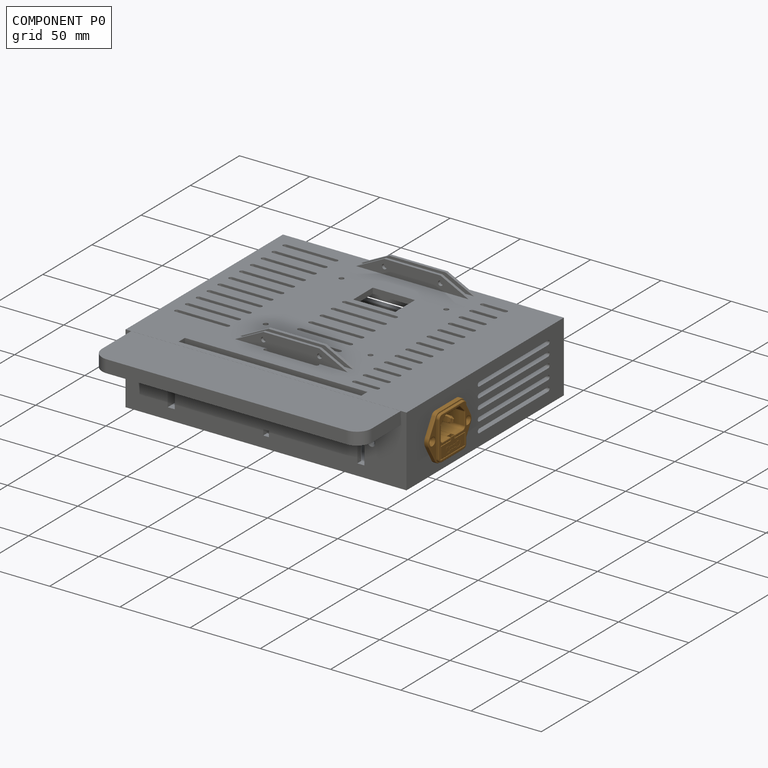
[diagram: component P0 — assembled]
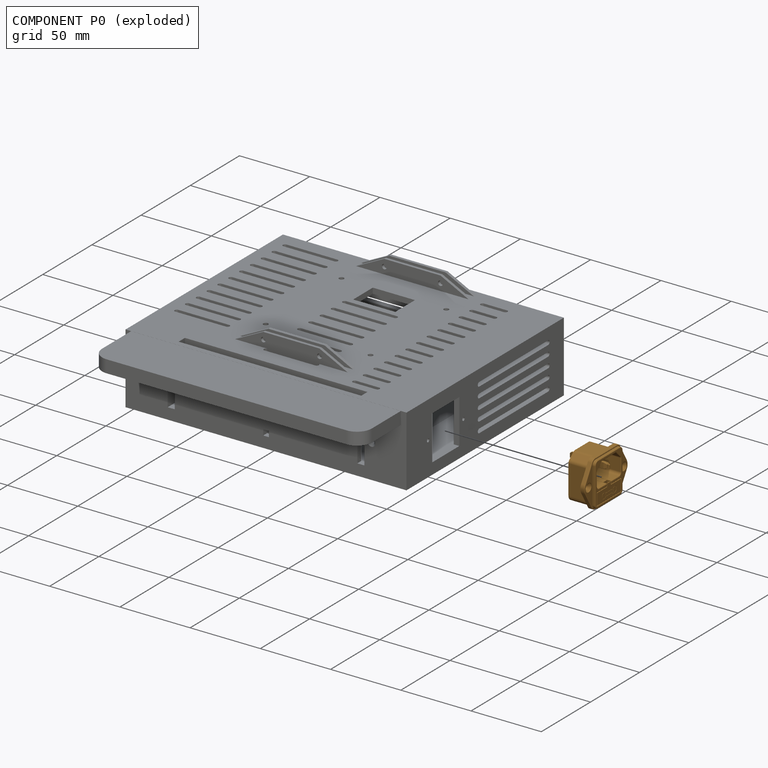
[diagram: component P0 — exploded]
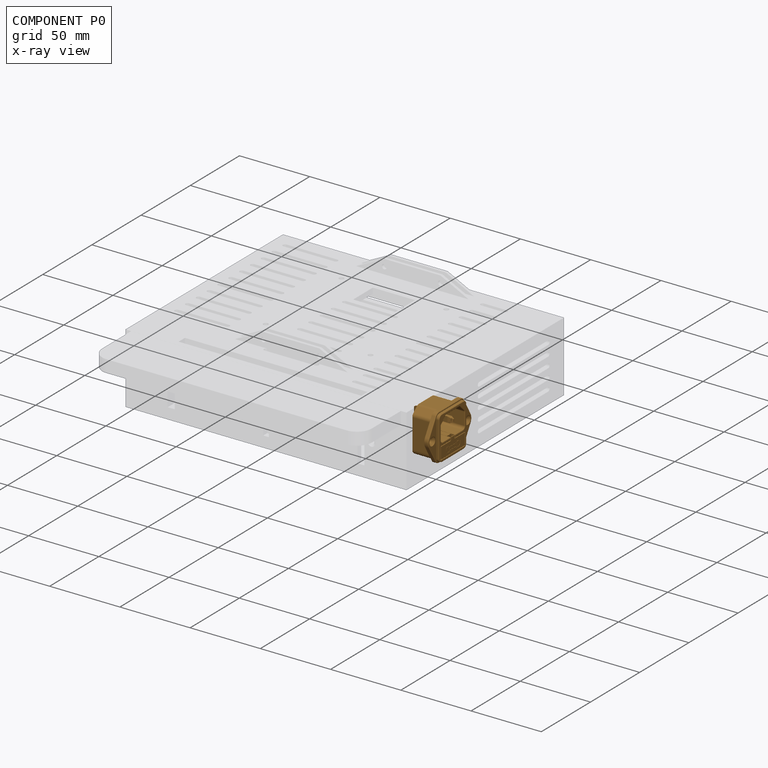
[diagram: component P0 — x-ray view]
COMPONENT P0 — geometry summary ("JR-101-1F008"; no construction recipe available for this part):
  bounding box: 44.0 x 33.0 x 27.7 mm
  tessellated surface: 17,872 triangles
  volume: 8508 mm^3 (21% of its bounding box)
Held by: resting contact with P1 (derived edge).
PROVENANCE & LICENSES
Assembly and component geometry: a FreeCAD (.FCStd) document from a public repository crawl; components, placements and joints were extracted with FreeCAD and each solid tessellated.
Construction recipes: the document's own serialized feature recipes (and, for linked parts, the recipes of companion documents from the same project).
License: lgpl-3.0.
Joints: native FreeCAD joints and A2plus constraints are mapped to standard mate types; edges marked 'derived from contact' connect touching components and are measured from the geometry, not modeled.
Verification: 1 of this assembly's 2 components carries a construction recipe (1 from this document itself); the rest are geometry-only. Every component's tessellation passed the extraction mesh gates (mesh-volume checksum against the B-rep where available, bounding-box inflation <= 2%).
Renders: orthographic iso camera (az 35 / el 25); the floor grid conveys scale (grid pitch printed in each image; no ruler). In the exploded view each component is displaced by its stored offset vector: the offsets alone carry the explosion direction (mate normal/axis signs are not orientation cues and do not encode it), and separation distances are assigned per mate-chain, not proportionally to assembly-order depth.
